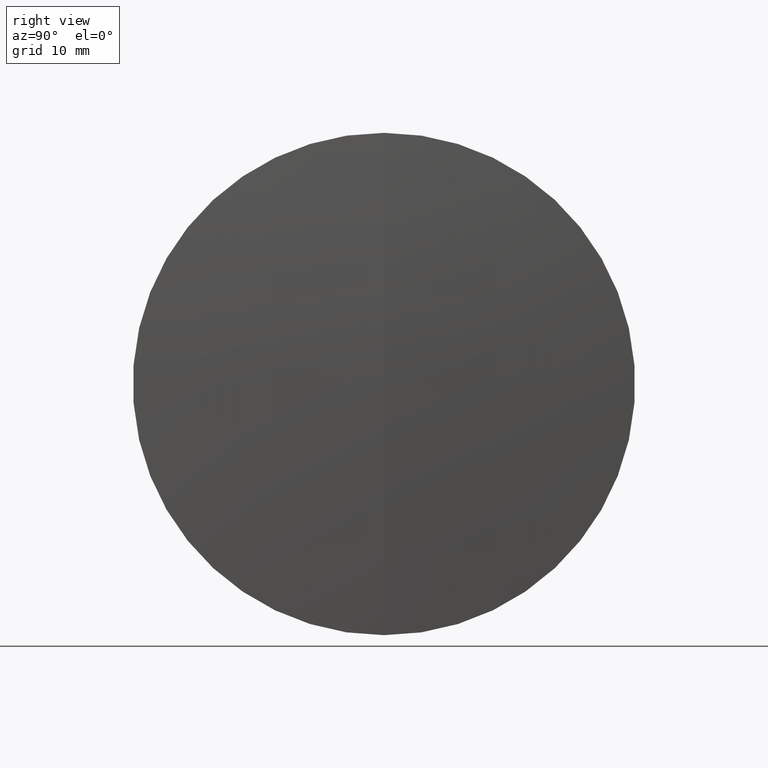
[diagram: clean part render]
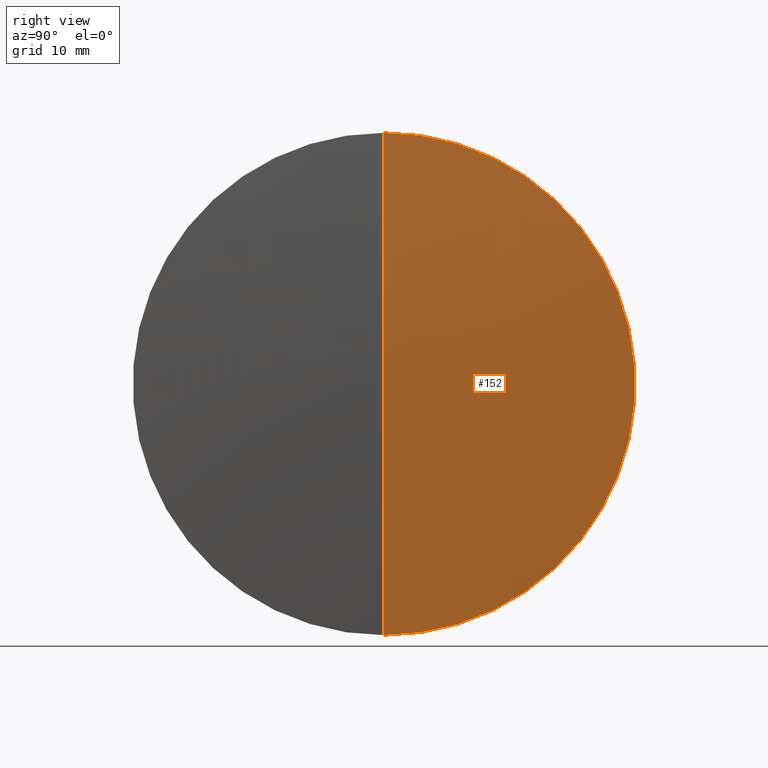
[diagram: same view with one face highlighted and labeled with its STEP entity id]
A machine part, right view. The second image highlights one B-rep face of the part: STEP entity #152.
In plain terms, the highlighted spherical surface has radius 312.6 mm.
Its self-contained STEP definition (entity closure, byte-faithful):
#1 = CARTESIAN_POINT ( 'NONE',  ( 531.7248018310176600, 0.0000000000000000000, 25.40000000000001300 ) ) ;
#9 = DIRECTION ( 'NONE',  ( 0.0000000000000000000, 1.000000000000000000, 0.0000000000000000000 ) ) ;
#40 = CIRCLE ( 'NONE', #116, 25.40000000000001300 ) ;
#50 = EDGE_LOOP ( 'NONE', ( #165, #336, #231 ) ) ;
#52 = CIRCLE ( 'NONE', #327, 312.5999999999999700 ) ;
#53 = CARTESIAN_POINT ( 'NONE',  ( 220.1584365089566700, 0.0000000000000000000, 0.0000000000000000000 ) ) ;
#61 = CARTESIAN_POINT ( 'NONE',  ( 532.7584365089566100, 0.0000000000000000000, 1.914122947067313100E-014 ) ) ;
#86 = EDGE_CURVE ( 'NONE', #252, #171, #40, .T. ) ;
#107 = CARTESIAN_POINT ( 'NONE',  ( 531.7248018310176600, 0.0000000000000000000, 0.0000000000000000000 ) ) ;
#112 = DIRECTION ( 'NONE',  ( 0.0000000000000000000, -1.000000000000000000, 0.0000000000000000000 ) ) ;
#116 = AXIS2_PLACEMENT_3D ( 'NONE', #107, #211, #316 ) ;
#117 = AXIS2_PLACEMENT_3D ( 'NONE', #210, #112, #307 ) ;
#132 = DIRECTION ( 'NONE',  ( 0.0000000000000000000, -1.224646799147353500E-016, 1.000000000000000000 ) ) ;
#140 = SPHERICAL_SURFACE ( 'NONE', #288, 312.5999999999999700 ) ;
#152 = ADVANCED_FACE ( 'NONE', ( #225 ), #140, .T. ) ;
#165 = ORIENTED_EDGE ( 'NONE', *, *, #169, .F. ) ;
#169 = EDGE_CURVE ( 'NONE', #295, #252, #341, .T. ) ;
#171 = VERTEX_POINT ( 'NONE', #287 ) ;
#205 = EDGE_CURVE ( 'NONE', #295, #171, #52, .T. ) ;
#210 = CARTESIAN_POINT ( 'NONE',  ( 220.1584365089566700, 0.0000000000000000000, 0.0000000000000000000 ) ) ;
#211 = DIRECTION ( 'NONE',  ( -1.000000000000000000, -0.0000000000000000000, -0.0000000000000000000 ) ) ;
#225 = FACE_OUTER_BOUND ( 'NONE', #50, .T. ) ;
#231 = ORIENTED_EDGE ( 'NONE', *, *, #86, .F. ) ;
#252 = VERTEX_POINT ( 'NONE', #1 ) ;
#287 = CARTESIAN_POINT ( 'NONE',  ( 531.7248018310176600, 3.110602869834278800E-015, -25.40000000000001300 ) ) ;
#288 = AXIS2_PLACEMENT_3D ( 'NONE', #53, #9, #343 ) ;
#295 = VERTEX_POINT ( 'NONE', #61 ) ;
#307 = DIRECTION ( 'NONE',  ( 0.0000000000000000000, 0.0000000000000000000, -1.000000000000000000 ) ) ;
#314 = DIRECTION ( 'NONE',  ( -0.0000000000000000000, 1.000000000000000000, 1.224646799147353200E-016 ) ) ;
#316 = DIRECTION ( 'NONE',  ( 0.0000000000000000000, 0.0000000000000000000, 1.000000000000000000 ) ) ;
#327 = AXIS2_PLACEMENT_3D ( 'NONE', #346, #314, #132 ) ;
#336 = ORIENTED_EDGE ( 'NONE', *, *, #205, .T. ) ;
#341 = CIRCLE ( 'NONE', #117, 312.5999999999999700 ) ;
#343 = DIRECTION ( 'NONE',  ( 0.0000000000000000000, 0.0000000000000000000, 1.000000000000000000 ) ) ;
#346 = CARTESIAN_POINT ( 'NONE',  ( 220.1584365089566700, 0.0000000000000000000, 0.0000000000000000000 ) ) ;